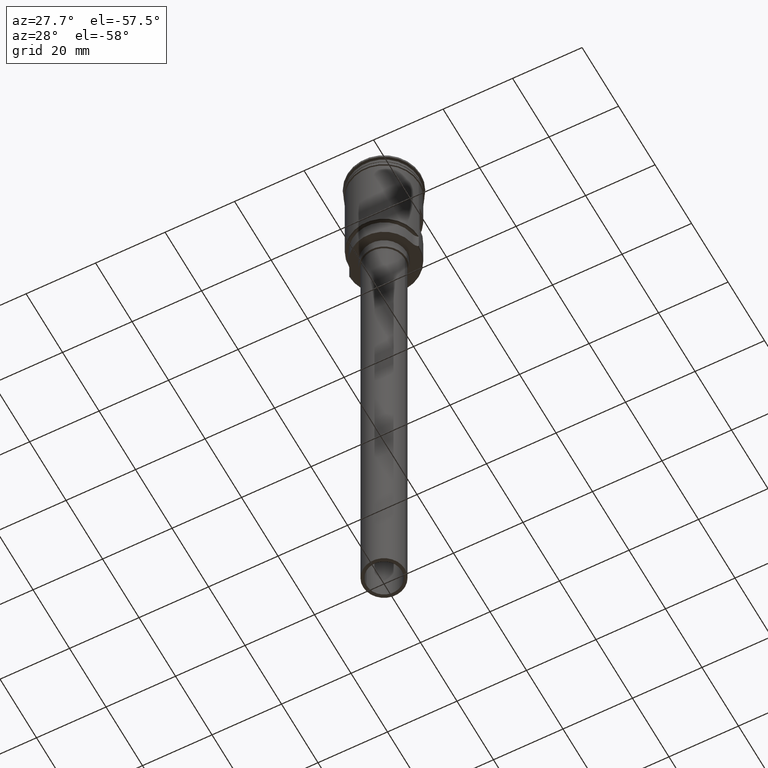
[diagram: clean part render]
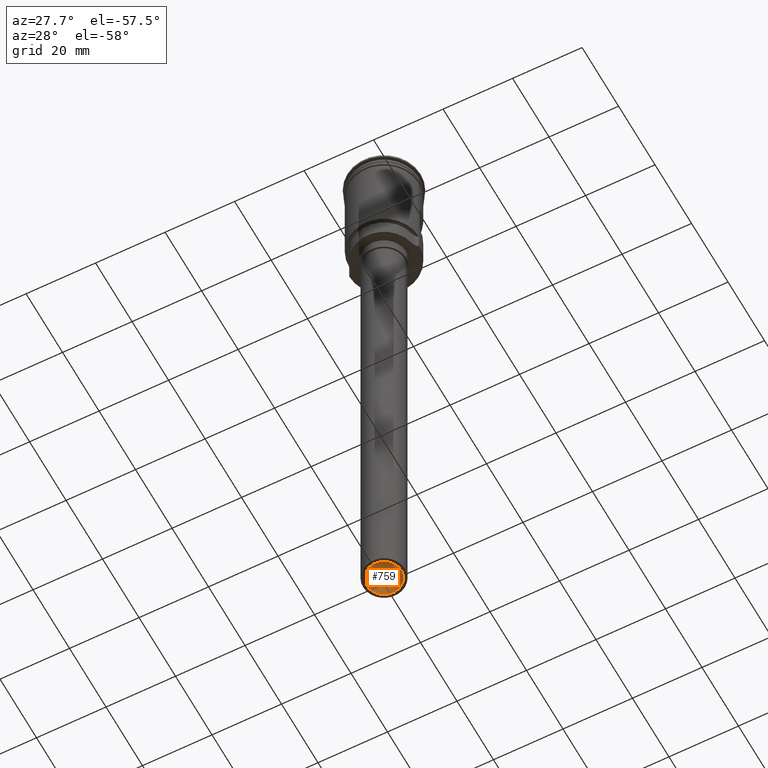
[diagram: same view with one face highlighted and labeled with its STEP entity id]
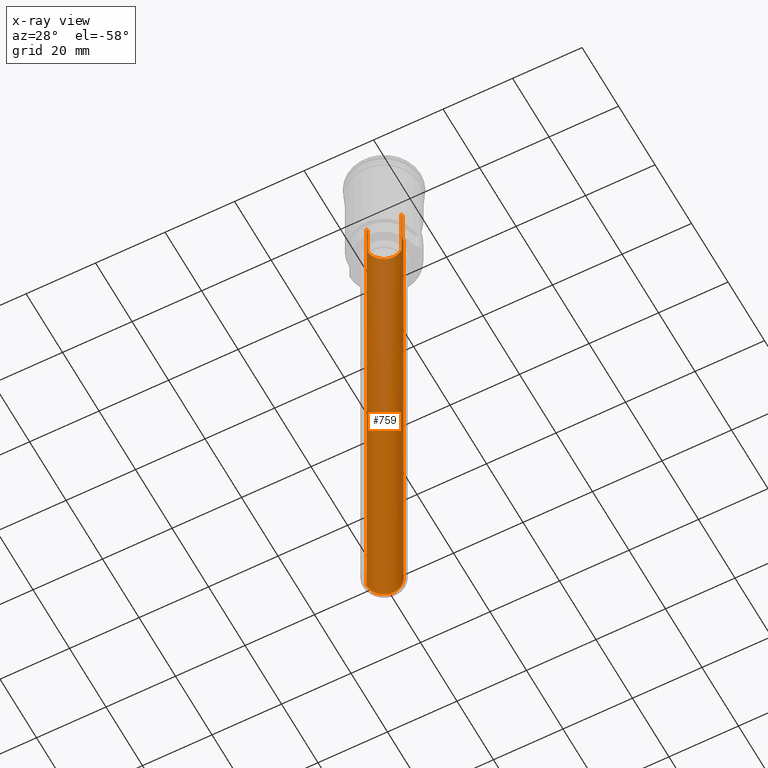
[diagram: x-ray of the same camera — body ghosted, the highlighted face saturated]
A machine part, auxiliary view. The second image highlights one B-rep face of the part: STEP entity #759.
The next image is the same camera in x-ray: the body ghosted, the highlighted face saturated — about 20% of this face is hidden behind the body in this view.
In plain terms, the highlighted cylindrical surface (edge-blend (fillet) strip) has radius 5 mm, axis along (-0, -0, -1).
Its self-contained STEP definition (entity closure, byte-faithful):
#32 = EDGE_CURVE ( 'NONE', #990, #1148, #584, .T. ) ;
#44 = DIRECTION ( 'NONE',  ( 0.000000000000000000, 0.000000000000000000, 1.000000000000000000 ) ) ;
#73 = LINE ( 'NONE', #329, #1251 ) ;
#78 = DIRECTION ( 'NONE',  ( -0.000000000000000000, -0.000000000000000000, -1.000000000000000000 ) ) ;
#122 = CYLINDRICAL_SURFACE ( 'NONE', #1155, 5.000000000000000888 ) ;
#126 = DIRECTION ( 'NONE',  ( -1.000000000000000000, 0.000000000000000000, 0.000000000000000000 ) ) ;
#127 = VERTEX_POINT ( 'NONE', #185 ) ;
#155 = DIRECTION ( 'NONE',  ( 0.000000000000000000, -1.000000000000000000, -3.469446951953613696E-16 ) ) ;
#185 = CARTESIAN_POINT ( 'NONE',  ( 5.000000000000000888, 6.123233995736766282E-16, -184.0000000000000000 ) ) ;
#195 = ORIENTED_EDGE ( 'NONE', *, *, #1454, .F. ) ;
#214 = VECTOR ( 'NONE', #309, 1000.000000000000000 ) ;
#246 = CARTESIAN_POINT ( 'NONE',  ( 0.000000000000000000, 0.000000000000000000, -15.00000000000000000 ) ) ;
#249 = DIRECTION ( 'NONE',  ( -0.000000000000000000, -0.000000000000000000, -1.000000000000000000 ) ) ;
#269 = CARTESIAN_POINT ( 'NONE',  ( 0.000000000000000000, 0.000000000000000000, -184.0000000000000000 ) ) ;
#281 = CARTESIAN_POINT ( 'NONE',  ( 0.000000000000000000, 0.000000000000000000, -15.00000000000000000 ) ) ;
#296 = AXIS2_PLACEMENT_3D ( 'NONE', #281, #1278, #155 ) ;
#309 = DIRECTION ( 'NONE',  ( -0.000000000000000000, -0.000000000000000000, -1.000000000000000000 ) ) ;
#321 = AXIS2_PLACEMENT_3D ( 'NONE', #269, #731, #765 ) ;
#329 = CARTESIAN_POINT ( 'NONE',  ( 5.000000000000000888, 6.123233995736766282E-16, -0.8578643762691129382 ) ) ;
#344 = CARTESIAN_POINT ( 'NONE',  ( 4.963869458396342971, 0.5999999999999998668, -25.00000000000000000 ) ) ;
#377 = CIRCLE ( 'NONE', #1375, 5.000000000000000888 ) ;
#388 = VERTEX_POINT ( 'NONE', #1485 ) ;
#396 = CARTESIAN_POINT ( 'NONE',  ( 0.000000000000000000, 0.000000000000000000, -25.00000000000000000 ) ) ;
#405 = CARTESIAN_POINT ( 'NONE',  ( -5.000000000000000888, 0.000000000000000000, -0.8578643762691129382 ) ) ;
#434 = EDGE_LOOP ( 'NONE', ( #1003, #927, #1438, #195, #978, #646, #752, #1550 ) ) ;
#480 = EDGE_CURVE ( 'NONE', #1148, #766, #1169, .T. ) ;
#482 = AXIS2_PLACEMENT_3D ( 'NONE', #396, #492, #126 ) ;
#492 = DIRECTION ( 'NONE',  ( -0.000000000000000000, -0.000000000000000000, -1.000000000000000000 ) ) ;
#512 = FACE_OUTER_BOUND ( 'NONE', #434, .T. ) ;
#584 = CIRCLE ( 'NONE', #296, 5.000000000000000888 ) ;
#606 = CIRCLE ( 'NONE', #482, 5.000000000000000888 ) ;
#624 = DIRECTION ( 'NONE',  ( 0.000000000000000000, -1.000000000000000000, -3.469446951953613696E-16 ) ) ;
#646 = ORIENTED_EDGE ( 'NONE', *, *, #32, .F. ) ;
#675 = CARTESIAN_POINT ( 'NONE',  ( 4.963869458396342971, 0.5999999999999998668, -0.8578643762691129382 ) ) ;
#731 = DIRECTION ( 'NONE',  ( 0.000000000000000000, 0.000000000000000000, -1.000000000000000000 ) ) ;
#752 = ORIENTED_EDGE ( 'NONE', *, *, #1561, .T. ) ;
#759 = ADVANCED_FACE ( 'NONE', ( #512 ), #122, .F. ) ;
#765 = DIRECTION ( 'NONE',  ( -1.000000000000000000, 0.000000000000000000, 0.000000000000000000 ) ) ;
#766 = VERTEX_POINT ( 'NONE', #1509 ) ;
#774 = DIRECTION ( 'NONE',  ( -0.000000000000000000, -0.000000000000000000, -1.000000000000000000 ) ) ;
#786 = CARTESIAN_POINT ( 'NONE',  ( -4.963869458396343859, 0.5999999999999999778, -15.00000000000000000 ) ) ;
#854 = DIRECTION ( 'NONE',  ( -0.000000000000000000, 1.845450506358306558E-16, -1.000000000000000000 ) ) ;
#872 = CARTESIAN_POINT ( 'NONE',  ( -5.000000000000000888, 0.000000000000000000, -15.00000000000000000 ) ) ;
#901 = LINE ( 'NONE', #405, #214 ) ;
#907 = EDGE_CURVE ( 'NONE', #1291, #1455, #1038, .T. ) ;
#927 = ORIENTED_EDGE ( 'NONE', *, *, #1473, .F. ) ;
#978 = ORIENTED_EDGE ( 'NONE', *, *, #480, .F. ) ;
#990 = VERTEX_POINT ( 'NONE', #872 ) ;
#1002 = DIRECTION ( 'NONE',  ( -1.000000000000000000, 0.000000000000000000, 0.000000000000000000 ) ) ;
#1003 = ORIENTED_EDGE ( 'NONE', *, *, #1282, .F. ) ;
#1038 = LINE ( 'NONE', #675, #1378 ) ;
#1099 = CIRCLE ( 'NONE', #321, 5.000000000000000888 ) ;
#1145 = CARTESIAN_POINT ( 'NONE',  ( -4.963869458396342971, 0.5999999999999998668, -0.8578643762691129382 ) ) ;
#1148 = VERTEX_POINT ( 'NONE', #786 ) ;
#1155 = AXIS2_PLACEMENT_3D ( 'NONE', #1362, #249, #1002 ) ;
#1169 = LINE ( 'NONE', #1145, #1488 ) ;
#1251 = VECTOR ( 'NONE', #78, 1000.000000000000000 ) ;
#1278 = DIRECTION ( 'NONE',  ( -0.000000000000000000, 1.845450506358306558E-16, -1.000000000000000000 ) ) ;
#1282 = EDGE_CURVE ( 'NONE', #388, #127, #73, .T. ) ;
#1291 = VERTEX_POINT ( 'NONE', #344 ) ;
#1357 = CARTESIAN_POINT ( 'NONE',  ( 4.963869458396339418, 0.6000000000000000888, -15.00000000000000000 ) ) ;
#1362 = CARTESIAN_POINT ( 'NONE',  ( 0.000000000000000000, 0.000000000000000000, -0.8578643762691129382 ) ) ;
#1371 = CARTESIAN_POINT ( 'NONE',  ( -5.000000000000000888, 0.000000000000000000, -184.0000000000000000 ) ) ;
#1375 = AXIS2_PLACEMENT_3D ( 'NONE', #246, #854, #624 ) ;
#1378 = VECTOR ( 'NONE', #44, 1000.000000000000000 ) ;
#1438 = ORIENTED_EDGE ( 'NONE', *, *, #907, .F. ) ;
#1454 = EDGE_CURVE ( 'NONE', #766, #1291, #606, .T. ) ;
#1455 = VERTEX_POINT ( 'NONE', #1357 ) ;
#1473 = EDGE_CURVE ( 'NONE', #1455, #388, #377, .T. ) ;
#1476 = VERTEX_POINT ( 'NONE', #1371 ) ;
#1485 = CARTESIAN_POINT ( 'NONE',  ( 5.000000000000000888, 6.123233995736766282E-16, -15.00000000000000000 ) ) ;
#1488 = VECTOR ( 'NONE', #774, 1000.000000000000000 ) ;
#1496 = EDGE_CURVE ( 'NONE', #1476, #127, #1099, .T. ) ;
#1509 = CARTESIAN_POINT ( 'NONE',  ( -4.963869458396342971, 0.5999999999999998668, -25.00000000000000000 ) ) ;
#1550 = ORIENTED_EDGE ( 'NONE', *, *, #1496, .T. ) ;
#1561 = EDGE_CURVE ( 'NONE', #990, #1476, #901, .T. ) ;